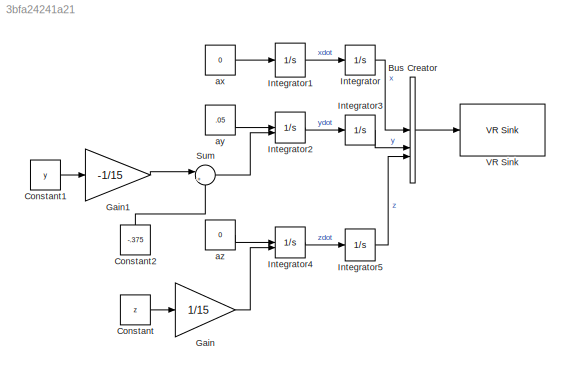
MODEL slx_3bfa24241a21
KIND model
CONFIG AbsTol = auto
CONFIG EnableMultiTasking = off
CONFIG FixedStep = auto
CONFIG InitFcn = [z,y] = runRScript(98,90);\nz = .1*z;\ny = .1*y;
CONFIG MaxStep = auto
CONFIG MinStep = auto
CONFIG RelTol = 1e-3
CONFIG SampleTimeConstraint = Unconstrained
CONFIG SolverName = VariableStepAuto
CONFIG StartTime = 0.0
CONFIG StopTime = 15
BLOCK [BusCreator] Bus Creator
  DisplayOption = bar
  InheritFromInputs = on
  Inputs = 3
  NameLocation = right
BLOCK [Constant] Constant
  Value = z
BLOCK [Constant] Constant1
  Value = y
BLOCK [Constant] Constant2
  NameLocation = right
  Value = -.375
BLOCK [Gain] Gain
  Gain = 1/15
BLOCK [Gain] Gain1
  Gain = -1/15
BLOCK [Integrator] Integrator
BLOCK [Integrator] Integrator1
  InitialCondition = 10/3
BLOCK [Integrator] Integrator2
  InitialConditionSource = external
BLOCK [Integrator] Integrator3
BLOCK [Integrator] Integrator4
  InitialConditionSource = external
BLOCK [Integrator] Integrator5
BLOCK [Sum] Sum
  Inputs = |++
BLOCK [Reference] VR Sink  REF=vrlib/VR Sink
  InstantiateOnLoad = on
  SourceBlock = vrlib/VR Sink
  SourceType = Virtual Reality Sink
BLOCK [Constant] ax
  Value = 0
BLOCK [Constant] ay
  Value = .05
BLOCK [Constant] az
  Value = 0
LINE Bus Creator:1 -> VR Sink:1
LINE Constant1:1 -> Gain1:1
LINE Constant2:1 -> Sum:2
LINE Constant:1 -> Gain:1
LINE Gain1:1 -> Sum:1
LINE Gain:1 -> Integrator4:2
LINE Integrator1:1 -> Integrator:1
LINE Integrator2:1 -> Integrator3:1
LINE Integrator3:1 -> Bus Creator:2
LINE Integrator4:1 -> Integrator5:1
LINE Integrator5:1 -> Bus Creator:3
LINE Integrator:1 -> Bus Creator:1
LINE Sum:1 -> Integrator2:2
LINE ax:1 -> Integrator1:1
LINE ay:1 -> Integrator2:1
LINE az:1 -> Integrator4:1
